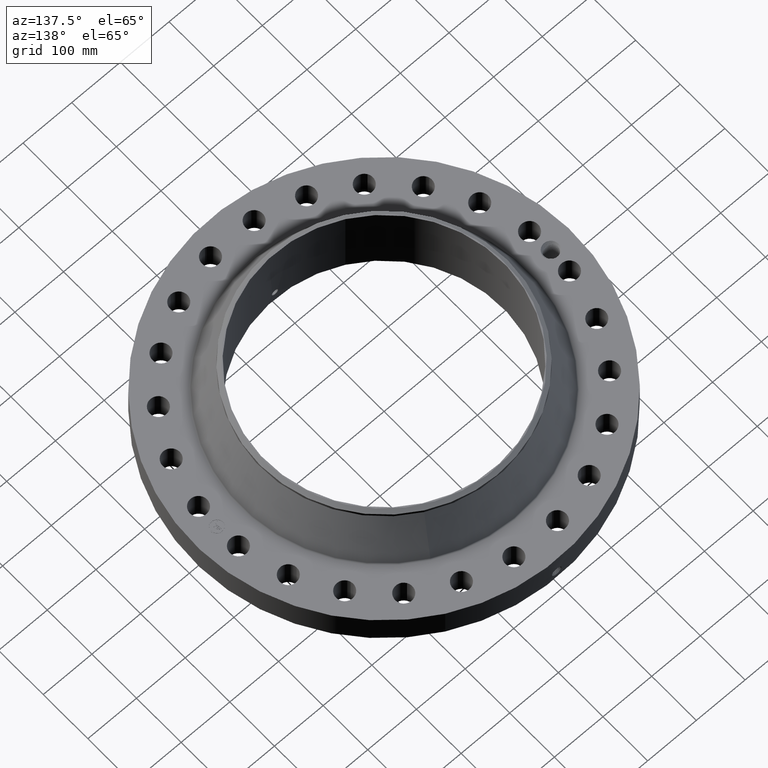
[diagram: clean part render]
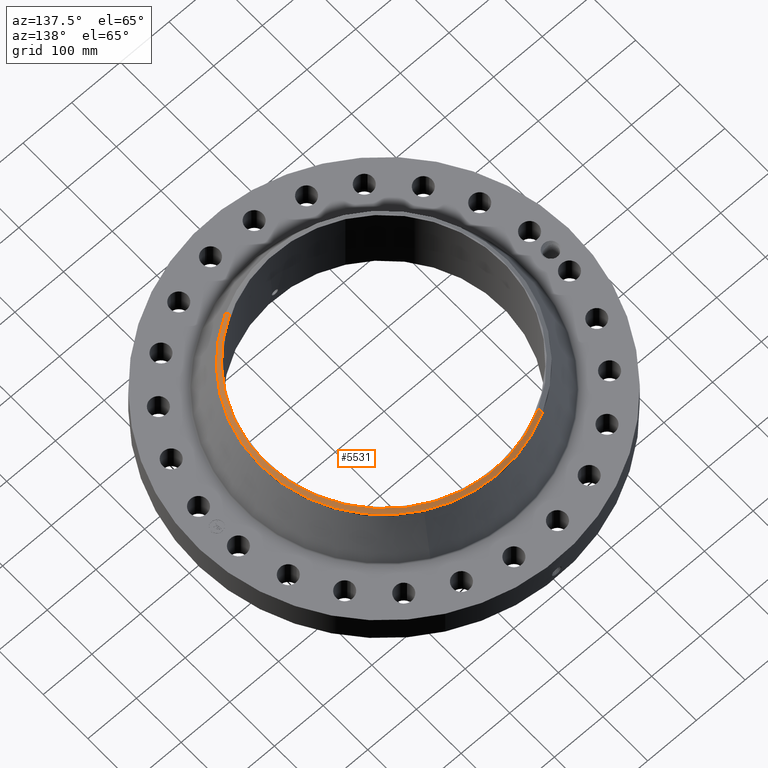
[diagram: same view with one face highlighted and labeled with its STEP entity id]
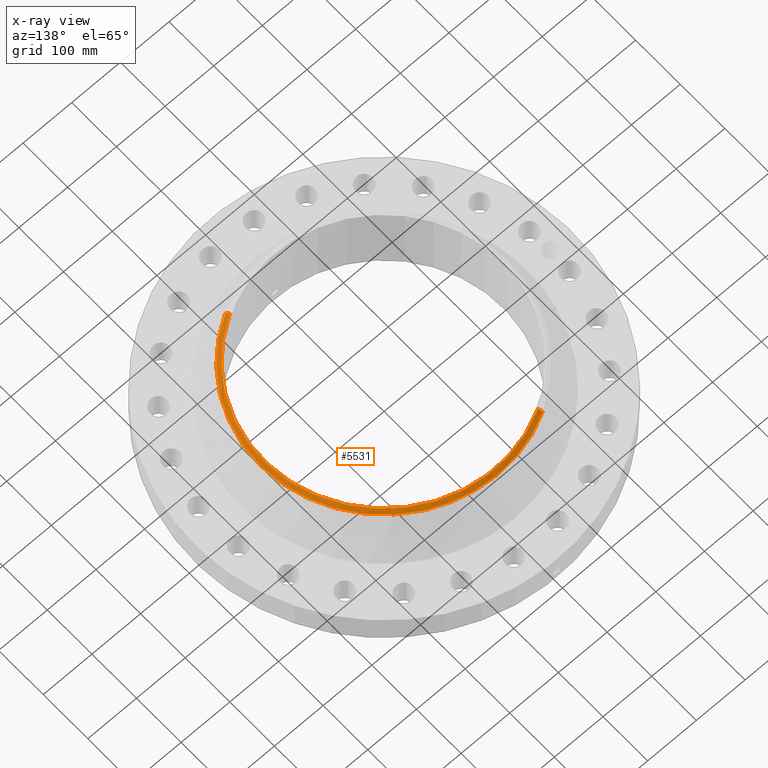
[diagram: x-ray of the same camera — body ghosted, the highlighted face saturated]
A machine part, auxiliary view. The second image highlights one B-rep face of the part: STEP entity #5531.
The next image is the same camera in x-ray: the body ghosted, the highlighted face saturated — about 0% of this face is hidden behind the body in this view.
In plain terms, the highlighted conical surface has half-angle 52.5 deg.
Its self-contained STEP definition (entity closure, byte-faithful):
#4358=AXIS2_PLACEMENT_3D('Circle Axis2P3D',#4356,#4357,$) ;
#4385=AXIS2_PLACEMENT_3D('Circle Axis2P3D',#4383,#4384,$) ;
#5159=AXIS2_PLACEMENT_3D('Circle Axis2P3D',#5157,#5158,$) ;
#5512=AXIS2_PLACEMENT_3D('Cone Axis2P3D',#5509,#5510,#5511) ;
#4353=CARTESIAN_POINT('Vertex',(4.79425538606,8.77582561894,6.2126718274)) ;
#4356=CARTESIAN_POINT('Axis2P3D Location',(0.,0.,6.2126718274)) ;
#4360=CARTESIAN_POINT('Vertex',(4.79425538606,-8.77582561894,6.2126718274)) ;
#4380=CARTESIAN_POINT('Vertex',(-4.79425538606,8.77582561894,6.2126718274)) ;
#4383=CARTESIAN_POINT('Axis2P3D Location',(0.,0.,6.2126718274)) ;
#5157=CARTESIAN_POINT('Axis2P3D Location',(0.,0.,6.44000000003)) ;
#5161=CARTESIAN_POINT('Vertex',(4.65222085149,-8.51583314735,6.44000000003)) ;
#5163=CARTESIAN_POINT('Vertex',(-4.65222085149,8.51583314735,6.44000000003)) ;
#5509=CARTESIAN_POINT('Axis2P3D Location',(0.,0.,6.44000000003)) ;
#5514=CARTESIAN_POINT('Line Origine',(-4.72323811878,8.64582938315,6.32633591372)) ;
#5519=CARTESIAN_POINT('Line Origine',(4.72323811878,-8.64582938315,6.32633591372)) ;
#4357=DIRECTION('Axis2P3D Direction',(0.,0.,-0.0393700787402)) ;
#4384=DIRECTION('Axis2P3D Direction',(0.,0.,-0.0393700787402)) ;
#5158=DIRECTION('Axis2P3D Direction',(0.,0.,-0.0393700787402)) ;
#5510=DIRECTION('Axis2P3D Direction',(-0.,-0.,-0.0393700787402)) ;
#5511=DIRECTION('Axis2P3D XDirection',(0.0188750212049,-0.0345504945626,0.)) ;
#5515=DIRECTION('Vector Direction',(-0.014974561121,0.02741075027,-0.023966985394)) ;
#5520=DIRECTION('Vector Direction',(0.014974561121,-0.02741075027,-0.023966985394)) ;
#5516=VECTOR('Line Direction',#5515,0.0393700787402) ;
#5521=VECTOR('Line Direction',#5520,0.0393700787402) ;
#5525=ORIENTED_EDGE('',*,*,#5518,.F.) ;
#5526=ORIENTED_EDGE('',*,*,#5165,.F.) ;
#5527=ORIENTED_EDGE('',*,*,#5523,.T.) ;
#5528=ORIENTED_EDGE('',*,*,#4362,.T.) ;
#5529=ORIENTED_EDGE('',*,*,#4387,.F.) ;
#5531=ADVANCED_FACE('PartBody',(#5530),#5513,.T.) ;
#4359=CIRCLE('generated circle',#4358,10.) ;
#4386=CIRCLE('generated circle',#4385,10.) ;
#5160=CIRCLE('generated circle',#5159,9.70374015752) ;
#5513=CONICAL_SURFACE('Cone',#5512,9.70374015752,0.916297857297) ;
#4362=EDGE_CURVE('',#4361,#4354,#4359,.F.) ;
#4387=EDGE_CURVE('',#4381,#4354,#4386,.T.) ;
#5165=EDGE_CURVE('',#5162,#5164,#5160,.F.) ;
#5518=EDGE_CURVE('',#5164,#4381,#5517,.T.) ;
#5523=EDGE_CURVE('',#5162,#4361,#5522,.T.) ;
#5524=EDGE_LOOP('',(#5525,#5526,#5527,#5528,#5529)) ;
#5530=FACE_OUTER_BOUND('',#5524,.T.) ;
#5517=LINE('Line',#5514,#5516) ;
#5522=LINE('Line',#5519,#5521) ;
#4354=VERTEX_POINT('',#4353) ;
#4361=VERTEX_POINT('',#4360) ;
#4381=VERTEX_POINT('',#4380) ;
#5162=VERTEX_POINT('',#5161) ;
#5164=VERTEX_POINT('',#5163) ;